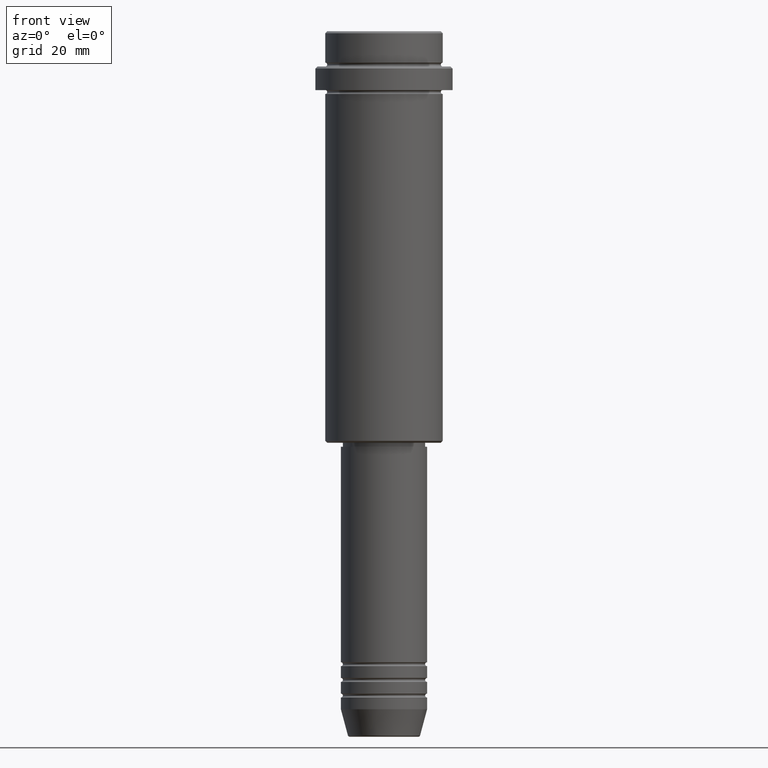
[diagram: clean part render]
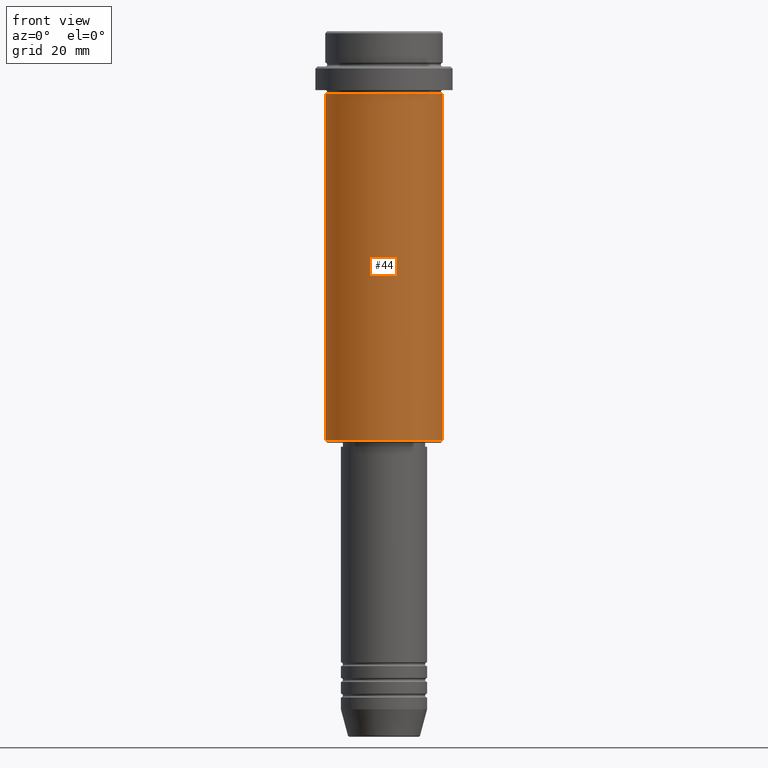
[diagram: same view with one face highlighted and labeled with its STEP entity id]
A machine part, front view. The second image highlights one B-rep face of the part: STEP entity #44.
In plain terms, the highlighted cylindrical surface (partial cylindrical patch) has radius 15 mm, axis along (-0, -0, 1).
Its self-contained STEP definition (entity closure, byte-faithful):
#30 = EDGE_CURVE ( 'NONE', #96, #754, #1055, .T. ) ;
#44 = ADVANCED_FACE ( 'NONE', ( #499 ), #1362, .T. ) ;
#52 = EDGE_CURVE ( 'NONE', #91, #754, #400, .T. ) ;
#91 = VERTEX_POINT ( 'NONE', #1076 ) ;
#96 = VERTEX_POINT ( 'NONE', #538 ) ;
#160 = DIRECTION ( 'NONE',  ( -0.000000000000000000, -0.000000000000000000, 1.000000000000000000 ) ) ;
#231 = DIRECTION ( 'NONE',  ( -0.000000000000000000, -0.000000000000000000, 1.000000000000000000 ) ) ;
#400 = LINE ( 'NONE', #836, #501 ) ;
#424 = ORIENTED_EDGE ( 'NONE', *, *, #30, .F. ) ;
#434 = LINE ( 'NONE', #879, #1400 ) ;
#448 = VERTEX_POINT ( 'NONE', #1339 ) ;
#499 = FACE_OUTER_BOUND ( 'NONE', #669, .T. ) ;
#501 = VECTOR ( 'NONE', #1269, 1000.000000000000000 ) ;
#538 = CARTESIAN_POINT ( 'NONE',  ( -15.00000000000000355, 1.836970198721029983E-15, -16.00000000000000000 ) ) ;
#543 = ORIENTED_EDGE ( 'NONE', *, *, #1300, .F. ) ;
#669 = EDGE_LOOP ( 'NONE', ( #543, #935, #829, #424 ) ) ;
#690 = CARTESIAN_POINT ( 'NONE',  ( 0.000000000000000000, 0.000000000000000000, -104.4999999999999858 ) ) ;
#754 = VERTEX_POINT ( 'NONE', #1171 ) ;
#829 = ORIENTED_EDGE ( 'NONE', *, *, #52, .T. ) ;
#836 = CARTESIAN_POINT ( 'NONE',  ( 15.00000000000000000, 0.000000000000000000, 0.000000000000000000 ) ) ;
#879 = CARTESIAN_POINT ( 'NONE',  ( -15.00000000000000000, 1.836970198721029589E-15, 0.000000000000000000 ) ) ;
#903 = DIRECTION ( 'NONE',  ( -1.000000000000000000, 0.000000000000000000, 0.000000000000000000 ) ) ;
#935 = ORIENTED_EDGE ( 'NONE', *, *, #1329, .T. ) ;
#957 = DIRECTION ( 'NONE',  ( -0.000000000000000000, -0.000000000000000000, 1.000000000000000000 ) ) ;
#1049 = DIRECTION ( 'NONE',  ( 1.000000000000000000, 0.000000000000000000, 0.000000000000000000 ) ) ;
#1054 = CARTESIAN_POINT ( 'NONE',  ( 0.000000000000000000, 0.000000000000000000, 0.000000000000000000 ) ) ;
#1055 = CIRCLE ( 'NONE', #1116, 15.00000000000000178 ) ;
#1063 = CARTESIAN_POINT ( 'NONE',  ( 0.000000000000000000, 0.000000000000000000, -16.00000000000000000 ) ) ;
#1076 = CARTESIAN_POINT ( 'NONE',  ( 15.00000000000000000, 0.000000000000000000, -104.4999999999999858 ) ) ;
#1105 = AXIS2_PLACEMENT_3D ( 'NONE', #690, #231, #903 ) ;
#1116 = AXIS2_PLACEMENT_3D ( 'NONE', #1063, #160, #1049 ) ;
#1167 = CIRCLE ( 'NONE', #1105, 15.00000000000000000 ) ;
#1169 = DIRECTION ( 'NONE',  ( -0.000000000000000000, -0.000000000000000000, 1.000000000000000000 ) ) ;
#1171 = CARTESIAN_POINT ( 'NONE',  ( 15.00000000000000178, 0.000000000000000000, -16.00000000000000000 ) ) ;
#1269 = DIRECTION ( 'NONE',  ( -0.000000000000000000, -0.000000000000000000, 1.000000000000000000 ) ) ;
#1300 = EDGE_CURVE ( 'NONE', #448, #96, #434, .T. ) ;
#1329 = EDGE_CURVE ( 'NONE', #448, #91, #1167, .T. ) ;
#1339 = CARTESIAN_POINT ( 'NONE',  ( -15.00000000000000000, 1.836970198721029589E-15, -104.4999999999999858 ) ) ;
#1362 = CYLINDRICAL_SURFACE ( 'NONE', #1363, 15.00000000000000000 ) ;
#1363 = AXIS2_PLACEMENT_3D ( 'NONE', #1054, #957, #1376 ) ;
#1376 = DIRECTION ( 'NONE',  ( 1.000000000000000000, 0.000000000000000000, 0.000000000000000000 ) ) ;
#1400 = VECTOR ( 'NONE', #1169, 1000.000000000000000 ) ;